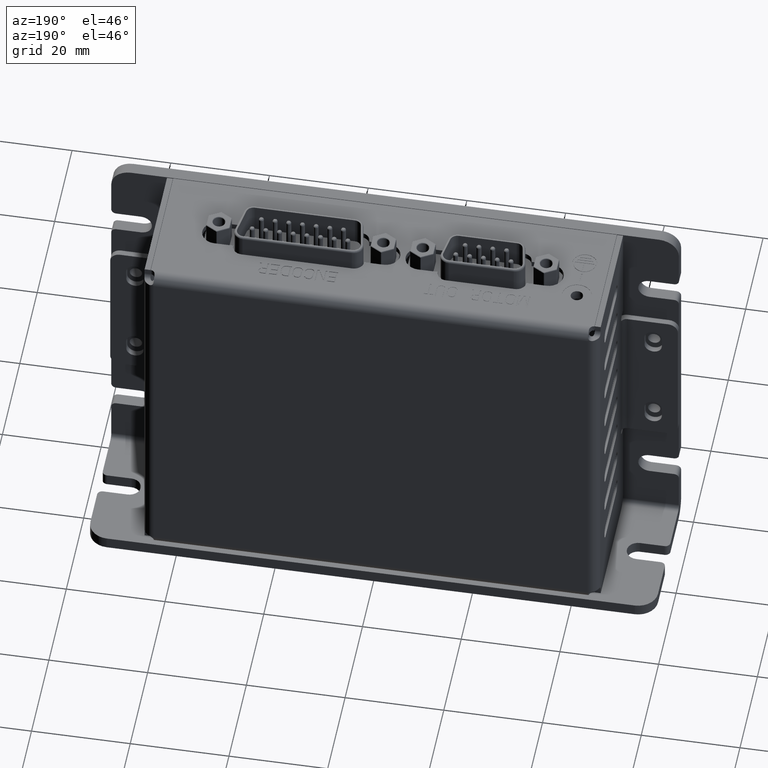
[diagram: clean part render]
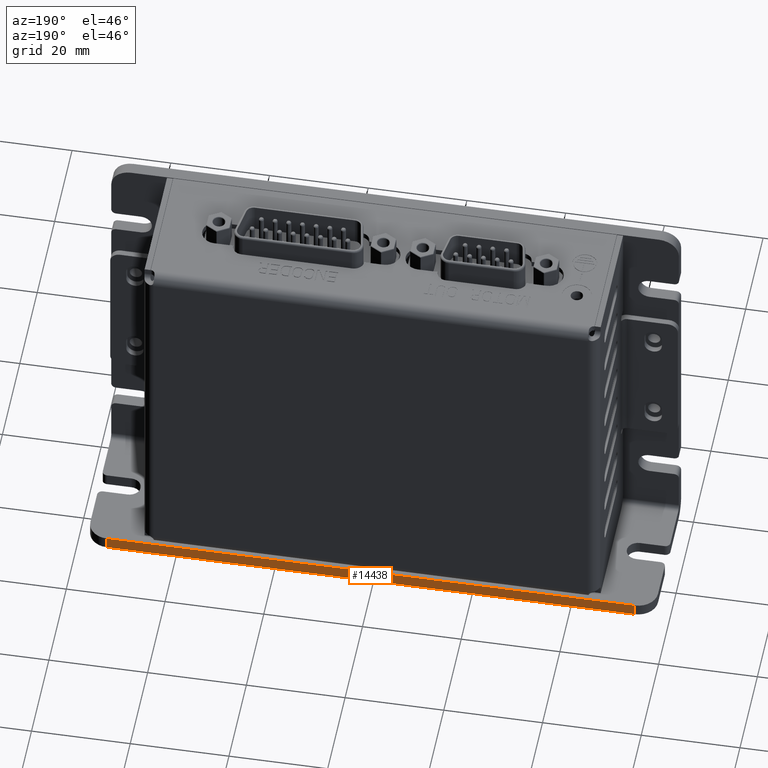
[diagram: same view with one face highlighted and labeled with its STEP entity id]
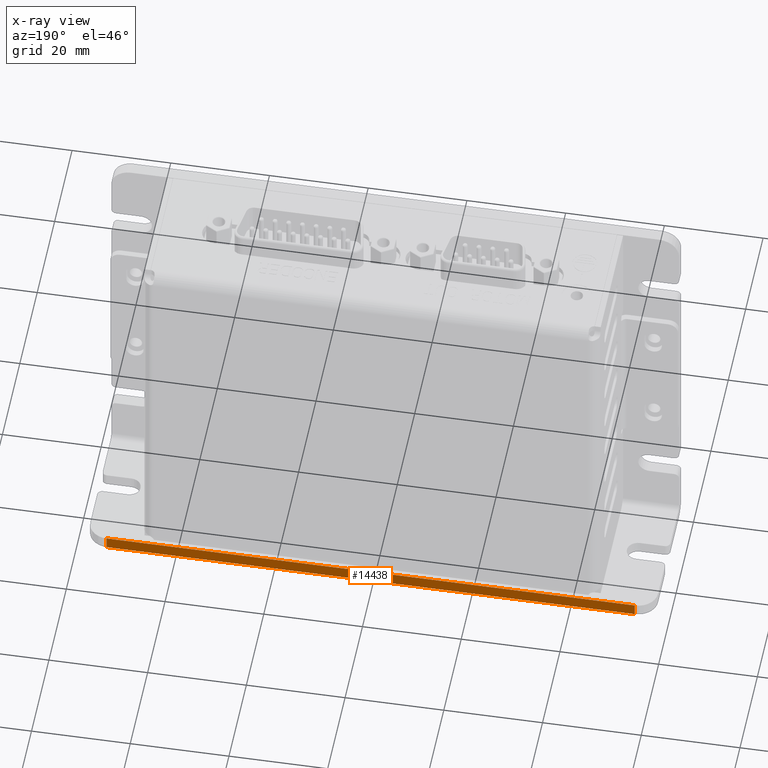
[diagram: x-ray of the same camera — body ghosted, the highlighted face saturated]
A machine part, auxiliary view. The second image highlights one B-rep face of the part: STEP entity #14438.
The next image is the same camera in x-ray: the body ghosted, the highlighted face saturated — about 0% of this face is hidden behind the body in this view.
In plain terms, the highlighted planar face has unit normal (0, 1, 0).
Its self-contained STEP definition (entity closure, byte-faithful):
#842=DIRECTION('',(1.E0,0.E0,0.E0));
#843=VECTOR('',#842,1.07E2);
#844=CARTESIAN_POINT('',(-5.35E1,3.05E1,-3.7E1));
#845=LINE('',#844,#843);
#3634=DIRECTION('',(0.E0,0.E0,-1.E0));
#3635=VECTOR('',#3634,2.5E0);
#3636=CARTESIAN_POINT('',(-5.35E1,3.05E1,-3.7E1));
#3637=LINE('',#3636,#3635);
#3638=DIRECTION('',(1.E0,0.E0,0.E0));
#3639=VECTOR('',#3638,1.07E2);
#3640=CARTESIAN_POINT('',(-5.35E1,3.05E1,-3.95E1));
#3641=LINE('',#3640,#3639);
#3642=DIRECTION('',(0.E0,0.E0,1.E0));
#3643=VECTOR('',#3642,2.5E0);
#3644=CARTESIAN_POINT('',(5.35E1,3.05E1,-3.95E1));
#3645=LINE('',#3644,#3643);
#8677=CARTESIAN_POINT('',(-5.35E1,3.05E1,-3.95E1));
#8679=VERTEX_POINT('',#8677);
#8680=CARTESIAN_POINT('',(-5.35E1,3.05E1,-3.7E1));
#8681=VERTEX_POINT('',#8680);
#8685=CARTESIAN_POINT('',(5.35E1,3.05E1,-3.7E1));
#8687=VERTEX_POINT('',#8685);
#8688=CARTESIAN_POINT('',(5.35E1,3.05E1,-3.95E1));
#8689=VERTEX_POINT('',#8688);
#14426=CARTESIAN_POINT('',(-5.75E1,3.05E1,-3.95E1));
#14427=DIRECTION('',(0.E0,1.E0,0.E0));
#14428=DIRECTION('',(0.E0,0.E0,1.E0));
#14429=AXIS2_PLACEMENT_3D('',#14426,#14427,#14428);
#14430=PLANE('',#14429);
#14432=ORIENTED_EDGE('',*,*,#14431,.T.);
#14433=ORIENTED_EDGE('',*,*,#12680,.T.);
#14434=ORIENTED_EDGE('',*,*,#14419,.T.);
#14435=ORIENTED_EDGE('',*,*,#12508,.F.);
#14436=EDGE_LOOP('',(#14432,#14433,#14434,#14435));
#14437=FACE_OUTER_BOUND('',#14436,.F.);
#14438=ADVANCED_FACE('',(#14437),#14430,.T.);
#12508=EDGE_CURVE('',#8681,#8687,#845,.T.);
#12680=EDGE_CURVE('',#8679,#8689,#3641,.T.);
#14419=EDGE_CURVE('',#8689,#8687,#3645,.T.);
#14431=EDGE_CURVE('',#8681,#8679,#3637,.T.);